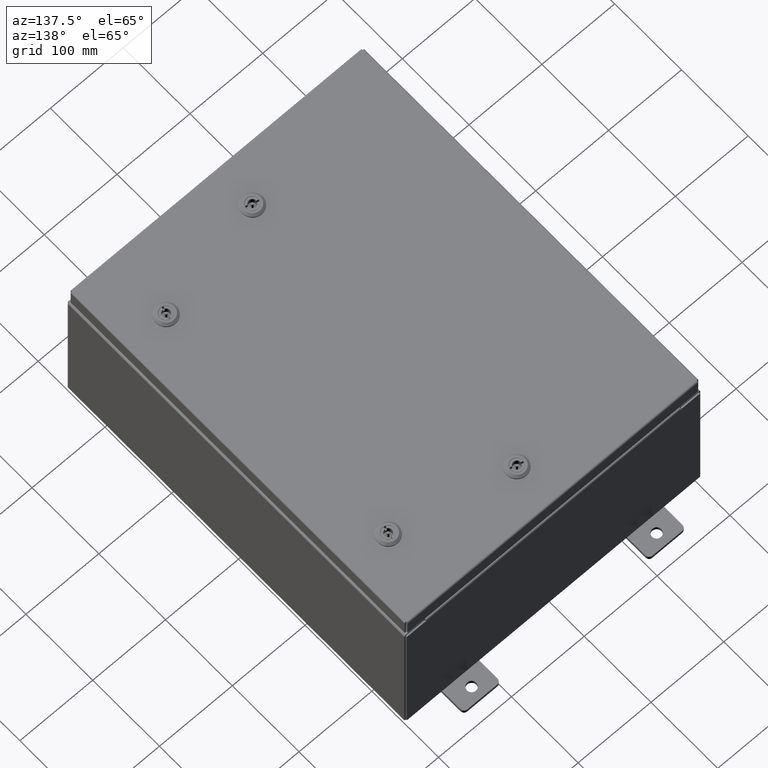
[diagram: clean part render]
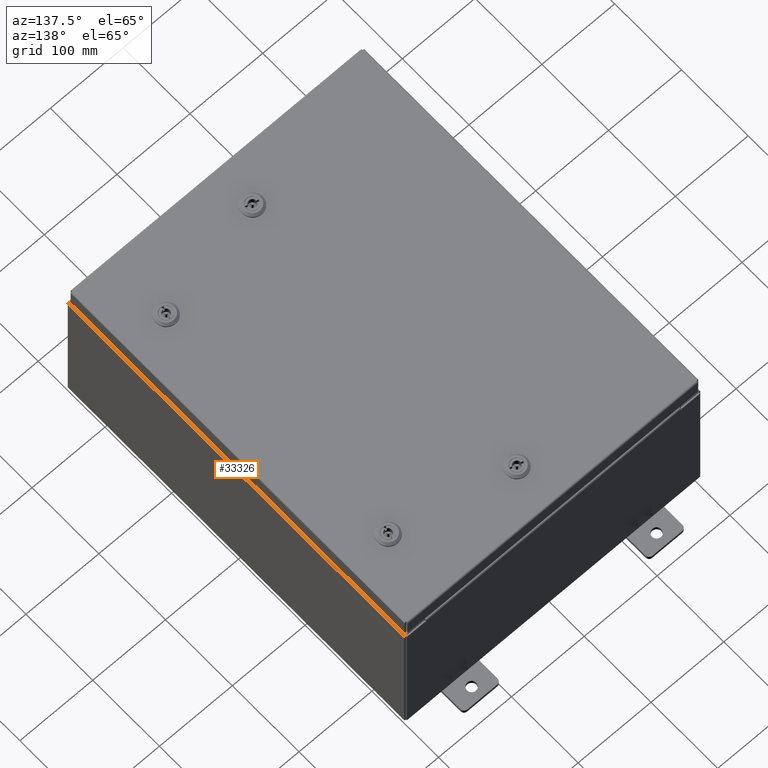
[diagram: same view with one face highlighted and labeled with its STEP entity id]
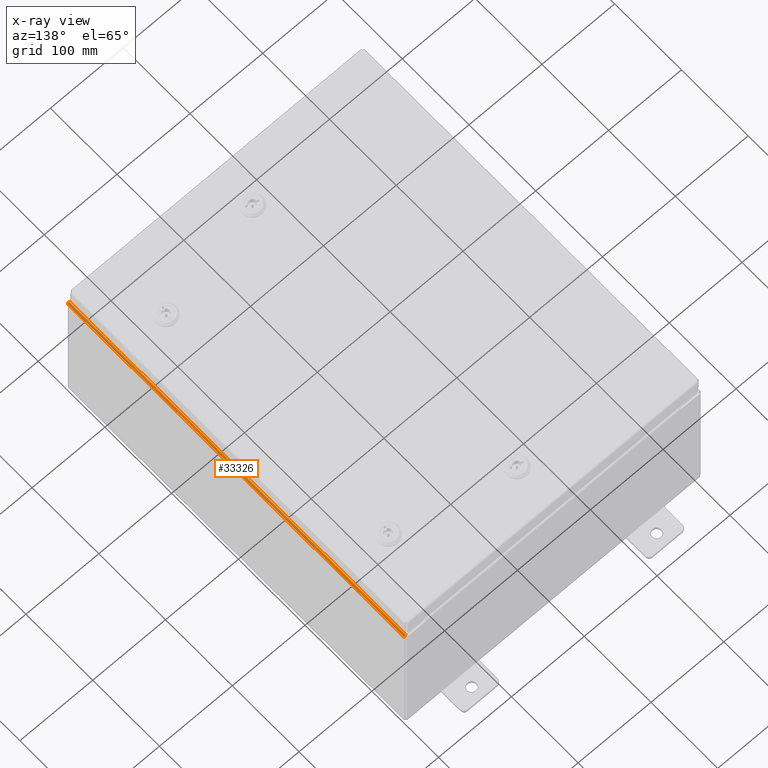
[diagram: x-ray of the same camera — body ghosted, the highlighted face saturated]
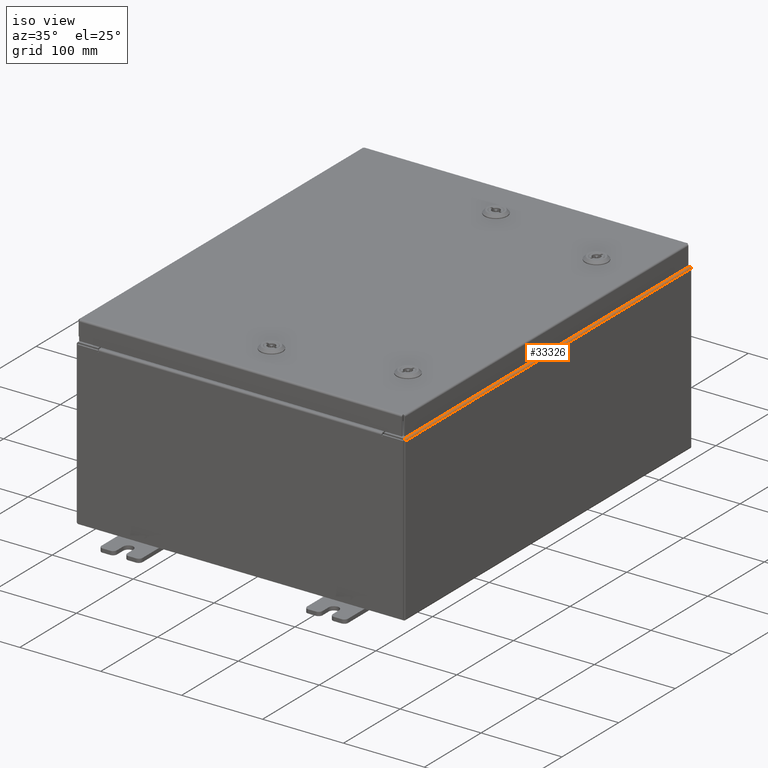
[diagram: same view with one face highlighted and labeled with its STEP entity id]
A machine part, auxiliary view. The second image highlights one B-rep face of the part: STEP entity #33326.
The next image is the same camera in x-ray: the body ghosted, the highlighted face saturated — about 0% of this face is hidden behind the body in this view.
A second angle (iso view) of the same face is appended — the face is thin or edge-on in the first view.
In plain terms, the highlighted cylindrical surface (edge-blend (fillet) strip) has radius 2.2276 mm, axis along (0, 1, 0).
Its self-contained STEP definition (entity closure, byte-faithful):
#374 = AXIS2_PLACEMENT_3D ( 'NONE', #49715, #20638, #54620 ) ;
#1494 = CARTESIAN_POINT ( 'NONE',  ( 8.000000000000030200, -9.925300000000001800, 7.837599999999999200 ) ) ;
#2510 = VERTEX_POINT ( 'NONE', #15938 ) ;
#3034 = CARTESIAN_POINT ( 'NONE',  ( 7.912300000000029400, -9.925300000000001800, 7.837599999999999200 ) ) ;
#4571 = AXIS2_PLACEMENT_3D ( 'NONE', #44792, #15623, #49637 ) ;
#5972 = VERTEX_POINT ( 'NONE', #1494 ) ;
#7942 = DIRECTION ( 'NONE',  ( 0.0000000000000000000, 0.0000000000000000000, 1.000000000000000000 ) ) ;
#9919 = EDGE_CURVE ( 'NONE', #42421, #50191, #18132, .T. ) ;
#15623 = DIRECTION ( 'NONE',  ( 0.0000000000000000000, 1.000000000000000000, 0.0000000000000000000 ) ) ;
#15938 = CARTESIAN_POINT ( 'NONE',  ( 7.912300000000029400, -9.925300000000001800, 7.925300000000000000 ) ) ;
#17151 = ORIENTED_EDGE ( 'NONE', *, *, #59548, .T. ) ;
#18090 = VECTOR ( 'NONE', #51032, 39.37007874015748100 ) ;
#18132 = CIRCLE ( 'NONE', #4571, 0.08770000000000026400 ) ;
#19651 = LINE ( 'NONE', #55905, #18090 ) ;
#20638 = DIRECTION ( 'NONE',  ( 0.0000000000000000000, 1.000000000000000000, 0.0000000000000000000 ) ) ;
#23336 = AXIS2_PLACEMENT_3D ( 'NONE', #3034, #37140, #7942 ) ;
#23377 = EDGE_CURVE ( 'NONE', #5972, #2510, #61551, .T. ) ;
#24141 = CARTESIAN_POINT ( 'NONE',  ( 7.912300000000029400, 9.925299999999991100, 7.925300000000000000 ) ) ;
#24257 = CARTESIAN_POINT ( 'NONE',  ( 8.000000000000030200, 9.925299999999991100, 7.837599999999999200 ) ) ;
#33326 = ADVANCED_FACE ( 'NONE', ( #61816 ), #60254, .T. ) ;
#33748 = DIRECTION ( 'NONE',  ( -0.0000000000000000000, -1.000000000000000000, -0.0000000000000000000 ) ) ;
#33927 = ORIENTED_EDGE ( 'NONE', *, *, #41430, .F. ) ;
#35015 = LINE ( 'NONE', #57946, #59329 ) ;
#37140 = DIRECTION ( 'NONE',  ( -0.0000000000000000000, -1.000000000000000000, -0.0000000000000000000 ) ) ;
#38958 = ORIENTED_EDGE ( 'NONE', *, *, #9919, .F. ) ;
#41430 = EDGE_CURVE ( 'NONE', #50191, #5972, #19651, .T. ) ;
#42276 = EDGE_LOOP ( 'NONE', ( #33927, #38958, #17151, #51044 ) ) ;
#42421 = VERTEX_POINT ( 'NONE', #24141 ) ;
#44792 = CARTESIAN_POINT ( 'NONE',  ( 7.912300000000029400, 9.925299999999991100, 7.837599999999999200 ) ) ;
#49637 = DIRECTION ( 'NONE',  ( 0.0000000000000000000, 0.0000000000000000000, 1.000000000000000000 ) ) ;
#49715 = CARTESIAN_POINT ( 'NONE',  ( 7.912300000000029400, 9.925299999999992900, 7.837599999999999200 ) ) ;
#50191 = VERTEX_POINT ( 'NONE', #24257 ) ;
#51032 = DIRECTION ( 'NONE',  ( -0.0000000000000000000, -1.000000000000000000, -0.0000000000000000000 ) ) ;
#51044 = ORIENTED_EDGE ( 'NONE', *, *, #23377, .F. ) ;
#54620 = DIRECTION ( 'NONE',  ( 1.245996804407870000E-014, 0.0000000000000000000, 1.000000000000000000 ) ) ;
#55905 = CARTESIAN_POINT ( 'NONE',  ( 8.000000000000030200, 9.925299999999992900, 7.837599999999999200 ) ) ;
#57946 = CARTESIAN_POINT ( 'NONE',  ( 7.912300000000029400, -9.925300000000001800, 7.925300000000000000 ) ) ;
#59329 = VECTOR ( 'NONE', #33748, 39.37007874015748100 ) ;
#59548 = EDGE_CURVE ( 'NONE', #42421, #2510, #35015, .T. ) ;
#60254 = CYLINDRICAL_SURFACE ( 'NONE', #374, 0.08770000000000026400 ) ;
#61551 = CIRCLE ( 'NONE', #23336, 0.08770000000000026400 ) ;
#61816 = FACE_OUTER_BOUND ( 'NONE', #42276, .T. ) ;